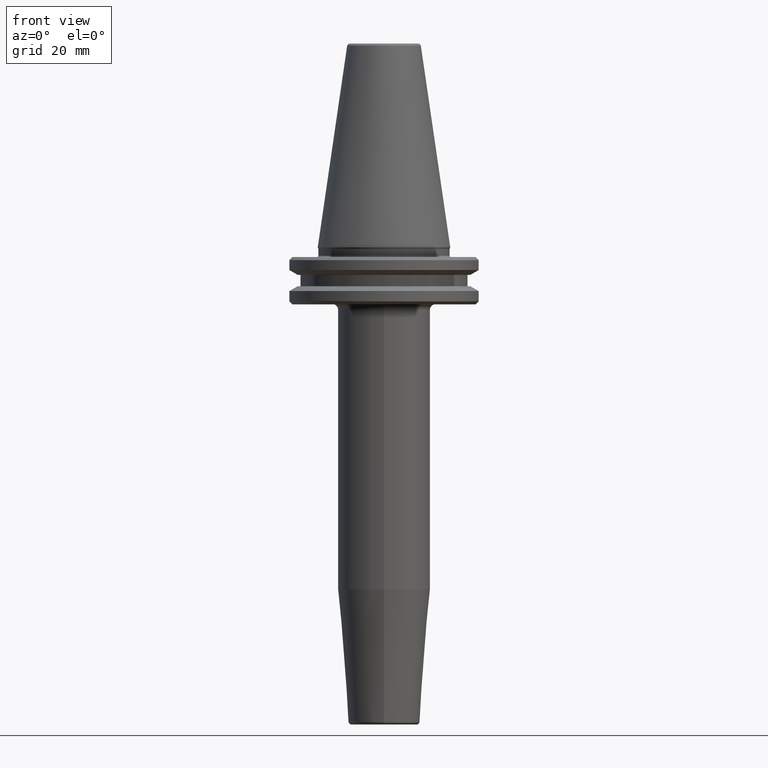
[diagram: clean part render]
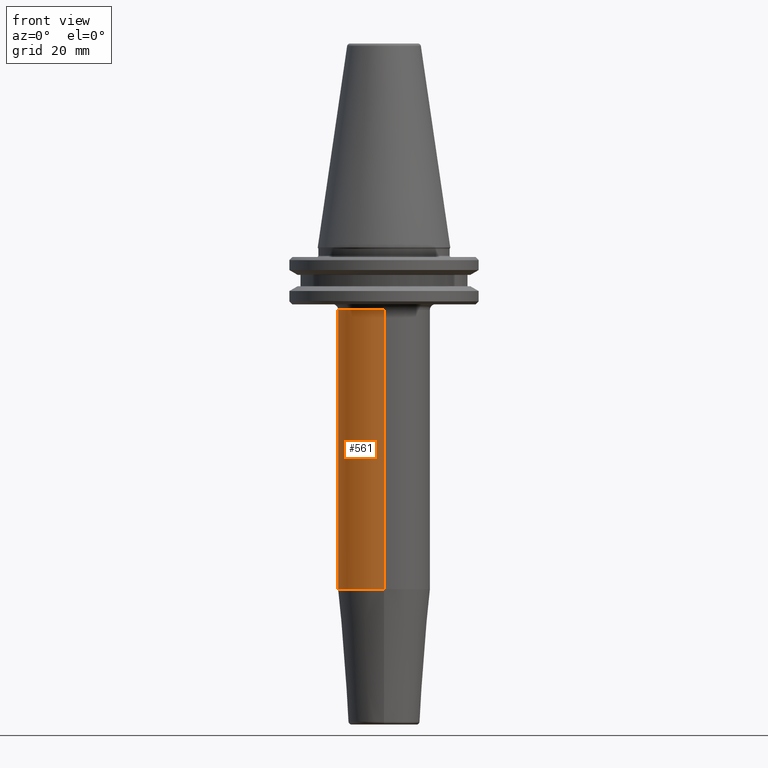
[diagram: same view with one face highlighted and labeled with its STEP entity id]
A machine part, front view. The second image highlights one B-rep face of the part: STEP entity #561.
In plain terms, the highlighted cylindrical surface (partial cylindrical patch) has radius 15.5 mm, axis along (-0, 0, -1).
Its self-contained STEP definition (entity closure, byte-faithful):
#15 = CARTESIAN_POINT ( 'NONE',  ( 0.0000000000000000000, -15.50000000000001100, -114.6067425191115900 ) ) ;
#22 = EDGE_CURVE ( 'NONE', #204, #926, #501, .T. ) ;
#38 = DIRECTION ( 'NONE',  ( -0.0000000000000000000, 1.256330602389183300E-016, -1.000000000000000000 ) ) ;
#55 = EDGE_LOOP ( 'NONE', ( #156, #930, #246, #380 ) ) ;
#105 = DIRECTION ( 'NONE',  ( -0.0000000000000000000, 1.256330602389183300E-016, -1.000000000000000000 ) ) ;
#140 = VECTOR ( 'NONE', #105, 1000.000000000000000 ) ;
#156 = ORIENTED_EDGE ( 'NONE', *, *, #237, .F. ) ;
#177 = CARTESIAN_POINT ( 'NONE',  ( 1.898202538678398000E-015, 15.50000000000000000, -114.6067425191115900 ) ) ;
#204 = VERTEX_POINT ( 'NONE', #15 ) ;
#227 = DIRECTION ( 'NONE',  ( 0.0000000000000000000, 1.000000000000000000, 0.0000000000000000000 ) ) ;
#237 = EDGE_CURVE ( 'NONE', #847, #204, #424, .T. ) ;
#242 = AXIS2_PLACEMENT_3D ( 'NONE', #948, #371, #1034 ) ;
#246 = ORIENTED_EDGE ( 'NONE', *, *, #1241, .T. ) ;
#253 = AXIS2_PLACEMENT_3D ( 'NONE', #547, #38, #822 ) ;
#315 = DIRECTION ( 'NONE',  ( -0.0000000000000000000, 1.256330602389183300E-016, -1.000000000000000000 ) ) ;
#336 = LINE ( 'NONE', #989, #599 ) ;
#353 = CARTESIAN_POINT ( 'NONE',  ( 0.0000000000000000000, 4.467959865220142400E-016, -160.0000000000000000 ) ) ;
#371 = DIRECTION ( 'NONE',  ( -0.0000000000000000000, 1.256330602389183300E-016, -1.000000000000000000 ) ) ;
#380 = ORIENTED_EDGE ( 'NONE', *, *, #22, .F. ) ;
#424 = LINE ( 'NONE', #613, #140 ) ;
#438 = AXIS2_PLACEMENT_3D ( 'NONE', #353, #1022, #227 ) ;
#501 = CIRCLE ( 'NONE', #253, 15.50000000000000500 ) ;
#509 = VERTEX_POINT ( 'NONE', #745 ) ;
#547 = CARTESIAN_POINT ( 'NONE',  ( 0.0000000000000000000, -5.256097865015170500E-015, -114.6067425191115900 ) ) ;
#561 = ADVANCED_FACE ( 'NONE', ( #688 ), #916, .T. ) ;
#585 = CIRCLE ( 'NONE', #242, 15.50000000000001800 ) ;
#599 = VECTOR ( 'NONE', #315, 1000.000000000000000 ) ;
#613 = CARTESIAN_POINT ( 'NONE',  ( 1.898202538678398700E-015, -15.50000000000001100, -160.0000000000000000 ) ) ;
#688 = FACE_OUTER_BOUND ( 'NONE', #55, .T. ) ;
#745 = CARTESIAN_POINT ( 'NONE',  ( 0.0000000000000000000, 15.50000000000000000, -20.98284271247460400 ) ) ;
#756 = CARTESIAN_POINT ( 'NONE',  ( 1.898202538678400300E-015, -15.50000000000003400, -20.98284271247461100 ) ) ;
#822 = DIRECTION ( 'NONE',  ( 0.0000000000000000000, 1.000000000000000000, 0.0000000000000000000 ) ) ;
#847 = VERTEX_POINT ( 'NONE', #756 ) ;
#916 = CYLINDRICAL_SURFACE ( 'NONE', #438, 15.50000000000001100 ) ;
#926 = VERTEX_POINT ( 'NONE', #177 ) ;
#930 = ORIENTED_EDGE ( 'NONE', *, *, #955, .T. ) ;
#948 = CARTESIAN_POINT ( 'NONE',  ( 0.0000000000000000000, -1.701835490922485000E-014, -20.98284271247460700 ) ) ;
#955 = EDGE_CURVE ( 'NONE', #847, #509, #585, .T. ) ;
#989 = CARTESIAN_POINT ( 'NONE',  ( 0.0000000000000000000, 15.50000000000001100, -160.0000000000000000 ) ) ;
#1022 = DIRECTION ( 'NONE',  ( -0.0000000000000000000, 1.256330602389183300E-016, -1.000000000000000000 ) ) ;
#1034 = DIRECTION ( 'NONE',  ( 0.0000000000000000000, 1.000000000000000000, 2.238352872228135700E-016 ) ) ;
#1241 = EDGE_CURVE ( 'NONE', #509, #926, #336, .T. ) ;